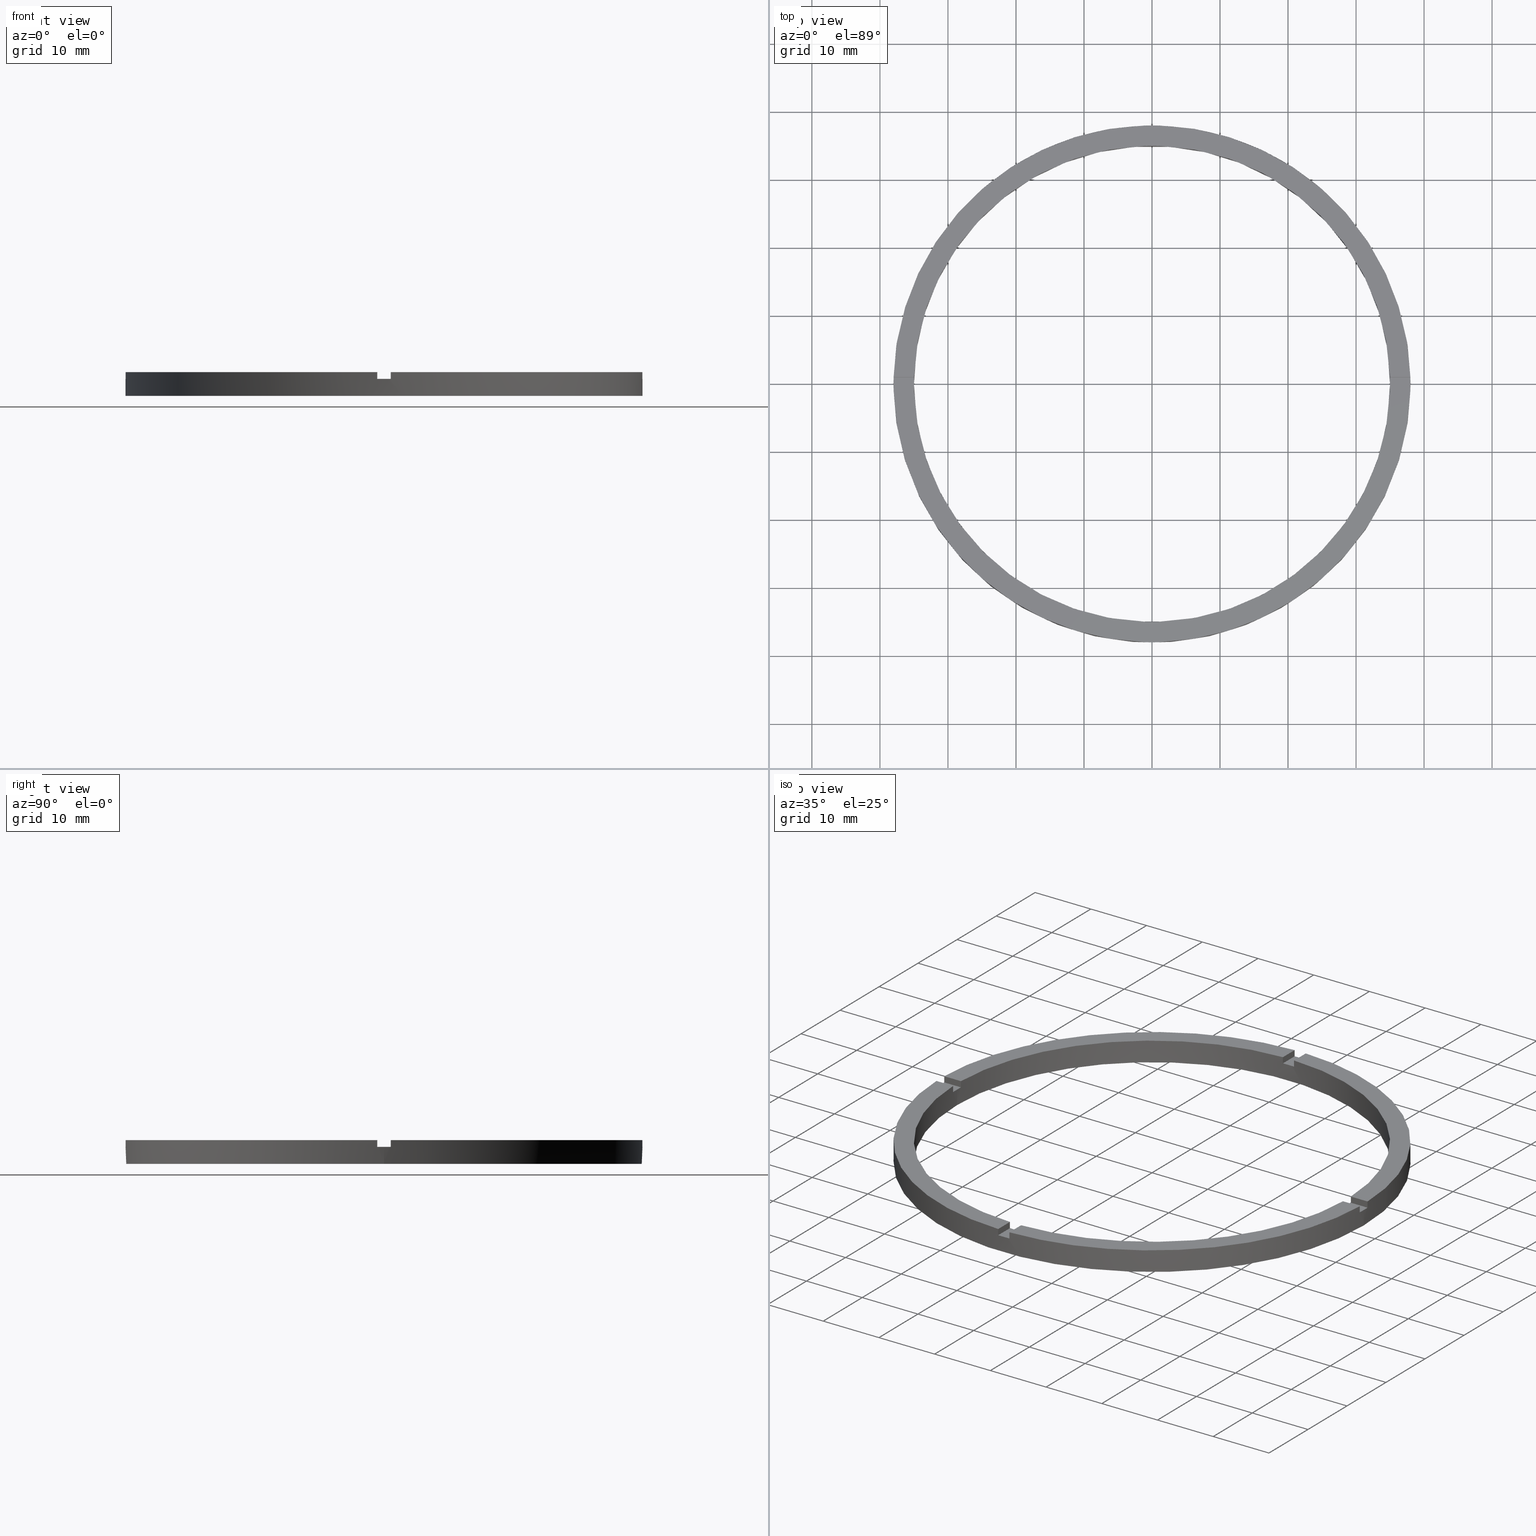
[diagram: canonical four-view strip — front | top / right | iso, engineering-drawing reading convention]
A machine part, canonical four-view strip (front | top / right | iso — engineering-drawing reading convention). The complete STEP part file that produces these views, byte-faithful:
ISO-10303-21;
HEADER;
FILE_DESCRIPTION (( 'STEP AP203' ),
    '1' );
FILE_NAME ('514157.step',
    '2024-12-26T02:43:04',
    ( 'MSI' ),
    ( '' ),
    'SwSTEP 2.0',
    'SolidWorks 2020',
    '' );
FILE_SCHEMA (( 'CONFIG_CONTROL_DESIGN' ));
ENDSEC;

DATA;
#1 = CARTESIAN_POINT ( 'NONE',  ( -28.00000000000018474, 0.9999999999999742428, 3.500000000000000000 ) ) ;
#2 = EDGE_CURVE ( 'NONE', #410, #122, #719, .T. ) ;
#3 = SECURITY_CLASSIFICATION ( '', '', #268 ) ;
#4 = CARTESIAN_POINT ( 'NONE',  ( 34.98571136907181511, 0.9999999999998423483, 3.500000000000000000 ) ) ;
#5 = ADVANCED_FACE ( 'NONE', ( #709 ), #191, .F. ) ;
#6 = CARTESIAN_POINT ( 'NONE',  ( 0.000000000000000000, 0.000000000000000000, 0.000000000000000000 ) ) ;
#7 = APPROVAL ( #439, 'δָ��' ) ;
#8 = VECTOR ( 'NONE', #677, 1000.000000000000000 ) ;
#9 = DIRECTION ( 'NONE',  ( 1.000000000000000000, 0.000000000000000000, -0.000000000000000000 ) ) ;
#10 = AXIS2_PLACEMENT_3D ( 'NONE', #432, #683, #435 ) ;
#11 = VECTOR ( 'NONE', #24, 1000.000000000000000 ) ;
#12 = DIRECTION ( 'NONE',  ( 0.000000000000000000, 0.000000000000000000, 1.000000000000000000 ) ) ;
#13 = DIRECTION ( 'NONE',  ( 0.000000000000000000, -0.000000000000000000, 1.000000000000000000 ) ) ;
#14 = LINE ( 'NONE', #445, #8 ) ;
#15 = DIRECTION ( 'NONE',  ( 1.000000000000000000, 1.951563910473907735E-16, 0.000000000000000000 ) ) ;
#16 = ADVANCED_FACE ( 'NONE', ( #180 ), #187, .T. ) ;
#17 = AXIS2_PLACEMENT_3D ( 'NONE', #563, #684, #458 ) ;
#18 = CARTESIAN_POINT ( 'NONE',  ( -34.98571136907180801, 0.9999999999999729106, 3.500000000000000000 ) ) ;
#19 = CIRCLE ( 'NONE', #434, 35.00000000000000711 ) ;
#20 = CARTESIAN_POINT ( 'NONE',  ( 34.98571136907180090, -1.000000000000157652, 2.500000000000000000 ) ) ;
#21 = EDGE_CURVE ( 'NONE', #488, #224, #195, .T. ) ;
#22 = LINE ( 'NONE', #773, #297 ) ;
#23 = LINE ( 'NONE', #243, #287 ) ;
#24 = DIRECTION ( 'NONE',  ( -0.000000000000000000, -1.000000000000000000, -0.000000000000000000 ) ) ;
#25 = DIRECTION ( 'NONE',  ( 1.000000000000000000, 0.000000000000000000, 0.000000000000000000 ) ) ;
#26 = CYLINDRICAL_SURFACE ( 'NONE', #422, 38.00000000000000000 ) ;
#27 = EDGE_CURVE ( 'NONE', #426, #626, #705, .T. ) ;
#28 = EDGE_CURVE ( 'NONE', #379, #376, #472, .T. ) ;
#29 = LINE ( 'NONE', #305, #31 ) ;
#30 = PLANE ( 'NONE',  #17 ) ;
#31 = VECTOR ( 'NONE', #265, 1000.000000000000000 ) ;
#32 = DIRECTION ( 'NONE',  ( 0.000000000000000000, 0.000000000000000000, 1.000000000000000000 ) ) ;
#33 = ADVANCED_BREP_SHAPE_REPRESENTATION ( '514157', ( #711, #570 ), #440 ) ;
#34 = LINE ( 'NONE', #375, #582 ) ;
#35 = DIRECTION ( 'NONE',  ( 1.000000000000000000, 0.000000000000000000, 0.000000000000000000 ) ) ;
#36 = DIRECTION ( 'NONE',  ( 0.000000000000000000, 0.000000000000000000, 1.000000000000000000 ) ) ;
#37 = LINE ( 'NONE', #202, #564 ) ;
#38 = CARTESIAN_POINT ( 'NONE',  ( 37.98683982644514856, -1.000000000000157430, 2.500000000000000000 ) ) ;
#39 = CARTESIAN_POINT ( 'NONE',  ( 34.98571136907180090, -1.000000000000157652, 3.500000000000000000 ) ) ;
#40 = CARTESIAN_POINT ( 'NONE',  ( 37.98683982644516277, 0.9999999999998425704, 3.500000000000000000 ) ) ;
#41 = LINE ( 'NONE', #66, #49 ) ;
#42 = CARTESIAN_POINT ( 'NONE',  ( -1.000000000000161204, -28.00000000000017764, 2.500000000000000000 ) ) ;
#43 = AXIS2_PLACEMENT_3D ( 'NONE', #532, #133, #261 ) ;
#44 = VECTOR ( 'NONE', #656, 1000.000000000000000 ) ;
#45 = DIRECTION ( 'NONE',  ( -1.000000000000000000, 0.000000000000000000, 0.000000000000000000 ) ) ;
#46 = VECTOR ( 'NONE', #186, 1000.000000000000000 ) ;
#47 = DIRECTION ( 'NONE',  ( 1.000000000000000000, 0.000000000000000000, 0.000000000000000000 ) ) ;
#48 = EDGE_CURVE ( 'NONE', #757, #649, #206, .T. ) ;
#49 = VECTOR ( 'NONE', #737, 1000.000000000000000 ) ;
#50 = ADVANCED_FACE ( 'NONE', ( #207 ), #246, .T. ) ;
#51 = DIRECTION ( 'NONE',  ( -1.000000000000000000, -1.301042606982605074E-16, 0.000000000000000000 ) ) ;
#52 = LINE ( 'NONE', #386, #333 ) ;
#53 = LINE ( 'NONE', #298, #55 ) ;
#54 = CARTESIAN_POINT ( 'NONE',  ( 38.00000000000000000, 4.653657836759941941E-15, 3.500000000000000000 ) ) ;
#55 = VECTOR ( 'NONE', #433, 1000.000000000000000 ) ;
#56 = CARTESIAN_POINT ( 'NONE',  ( 0.000000000000000000, 0.000000000000000000, 3.500000000000000000 ) ) ;
#57 = FACE_OUTER_BOUND ( 'NONE', #642, .T. ) ;
#58 = CIRCLE ( 'NONE', #267, 38.00000000000000000 ) ;
#59 = LINE ( 'NONE', #61, #598 ) ;
#60 = CC_DESIGN_PERSON_AND_ORGANIZATION_ASSIGNMENT ( #602, #259, ( #644 ) ) ;
#61 = CARTESIAN_POINT ( 'NONE',  ( 0.9999999999999746869, 27.99999999999999645, 3.500000000000000000 ) ) ;
#62 = ADVANCED_FACE ( 'NONE', ( #170 ), #533, .F. ) ;
#63 = FACE_OUTER_BOUND ( 'NONE', #428, .T. ) ;
#64 = PERSON_AND_ORGANIZATION ( #183, #77 ) ;
#65 = EDGE_CURVE ( 'NONE', #488, #376, #182, .T. ) ;
#66 = CARTESIAN_POINT ( 'NONE',  ( -38.00000000000000000, 0.000000000000000000, 3.500000000000000000 ) ) ;
#67 = CIRCLE ( 'NONE', #164, 35.00000000000000711 ) ;
#68 = EDGE_CURVE ( 'NONE', #647, #146, #703, .T. ) ;
#69 = VECTOR ( 'NONE', #544, 1000.000000000000000 ) ;
#70 = DATE_AND_TIME ( #355, #88 ) ;
#71 = PLANE ( 'NONE',  #721 ) ;
#72 = DIRECTION ( 'NONE',  ( 0.000000000000000000, 1.000000000000000000, 0.000000000000000000 ) ) ;
#73 = LINE ( 'NONE', #373, #44 ) ;
#74 = COORDINATED_UNIVERSAL_TIME_OFFSET ( 8, 0, .AHEAD. ) ;
#75 = APPROVAL_PERSON_ORGANIZATION ( #64, #519, #551 ) ;
#76 = PLANE ( 'NONE',  #484 ) ;
#77 = ORGANIZATION ( 'δָ��', 'δָ��', '' ) ;
#78 = AXIS2_PLACEMENT_3D ( 'NONE', #273, #13, #525 ) ;
#79 = VECTOR ( 'NONE', #560, 1000.000000000000000 ) ;
#80 = LOCAL_TIME ( 10, 43, 4.000000000000000000, #346 ) ;
#81 = DIRECTION ( 'NONE',  ( 0.000000000000000000, 0.000000000000000000, 1.000000000000000000 ) ) ;
#82 = APPROVAL_DATE_TIME ( #610, #519 ) ;
#83 = EDGE_CURVE ( 'NONE', #129, #465, #184, .T. ) ;
#84 = ORIENTED_EDGE ( 'NONE', *, *, #565, .F. ) ;
#85 = CARTESIAN_POINT ( 'NONE',  ( -1.000000000000161204, -28.00000000000017764, 2.500000000000000000 ) ) ;
#86 = LINE ( 'NONE', #648, #364 ) ;
#87 = ADVANCED_FACE ( 'NONE', ( #707 ), #381, .T. ) ;
#88 = LOCAL_TIME ( 10, 43, 4.000000000000000000, #606 ) ;
#89 = CARTESIAN_POINT ( 'NONE',  ( 27.99999999999998934, 0.9999999999998419042, 3.500000000000000000 ) ) ;
#90 = CYLINDRICAL_SURFACE ( 'NONE', #669, 35.00000000000000711 ) ;
#91 = PERSON_AND_ORGANIZATION ( #183, #77 ) ;
#92 = DIRECTION ( 'NONE',  ( 0.000000000000000000, 0.000000000000000000, 1.000000000000000000 ) ) ;
#93 = FACE_OUTER_BOUND ( 'NONE', #172, .T. ) ;
#94 = CALENDAR_DATE ( 2024, 26, 12 ) ;
#95 = VECTOR ( 'NONE', #289, 1000.000000000000000 ) ;
#96 = DIRECTION ( 'NONE',  ( -1.000000000000000000, -1.951563910473907735E-16, 0.000000000000000000 ) ) ;
#97 = ORIENTED_EDGE ( 'NONE', *, *, #121, .T. ) ;
#98 = VERTEX_POINT ( 'NONE', #168 ) ;
#99 = DIRECTION ( 'NONE',  ( 0.000000000000000000, 0.000000000000000000, 1.000000000000000000 ) ) ;
#100 = EDGE_LOOP ( 'NONE', ( #137, #512, #738, #228 ) ) ;
#101 = VERTEX_POINT ( 'NONE', #257 ) ;
#102 = ORIENTED_EDGE ( 'NONE', *, *, #781, .F. ) ;
#103 = CARTESIAN_POINT ( 'NONE',  ( 0.000000000000000000, 0.000000000000000000, 2.500000000000000000 ) ) ;
#104 = ORIENTED_EDGE ( 'NONE', *, *, #331, .F. ) ;
#105 = CARTESIAN_POINT ( 'NONE',  ( -28.00000000000018474, -1.000000000000025757, 2.500000000000000000 ) ) ;
#106 = AXIS2_PLACEMENT_3D ( 'NONE', #103, #204, #583 ) ;
#107 = EDGE_CURVE ( 'NONE', #379, #256, #188, .T. ) ;
#108 = LINE ( 'NONE', #700, #384 ) ;
#109 = DIRECTION ( 'NONE',  ( -1.301042606982605074E-16, 1.000000000000000000, 0.000000000000000000 ) ) ;
#110 = DESIGN_CONTEXT ( 'detailed design', #726, 'design' ) ;
#111 = ORIENTED_EDGE ( 'NONE', *, *, #413, .F. ) ;
#112 = DIRECTION ( 'NONE',  ( 1.000000000000000000, 0.000000000000000000, 0.000000000000000000 ) ) ;
#113 = DIRECTION ( 'NONE',  ( -0.000000000000000000, -0.000000000000000000, -1.000000000000000000 ) ) ;
#114 = CARTESIAN_POINT ( 'NONE',  ( 35.00000000000000711, 4.286263797015737285E-15, 2.500000000000000000 ) ) ;
#115 = CARTESIAN_POINT ( 'NONE',  ( 34.98571136907181511, 0.9999999999998423483, 2.500000000000000000 ) ) ;
#116 = EDGE_CURVE ( 'NONE', #242, #240, #210, .T. ) ;
#117 = DIRECTION ( 'NONE',  ( 1.000000000000000000, 0.000000000000000000, 0.000000000000000000 ) ) ;
#118 = AXIS2_PLACEMENT_3D ( 'NONE', #771, #32, #25 ) ;
#119 = ORIENTED_EDGE ( 'NONE', *, *, #142, .T. ) ;
#120 = APPROVAL ( #276, 'δָ��' ) ;
#121 = EDGE_CURVE ( 'NONE', #488, #460, #478, .T. ) ;
#122 = VERTEX_POINT ( 'NONE', #321 ) ;
#123 = ORIENTED_EDGE ( 'NONE', *, *, #380, .T. ) ;
#124 = AXIS2_PLACEMENT_3D ( 'NONE', #621, #12, #270 ) ;
#125 = DIRECTION ( 'NONE',  ( 0.000000000000000000, 0.000000000000000000, 1.000000000000000000 ) ) ;
#126 = ORIENTED_EDGE ( 'NONE', *, *, #269, .F. ) ;
#127 = CARTESIAN_POINT ( 'NONE',  ( -1.000000000000025313, 37.98683982644515567, 3.500000000000000000 ) ) ;
#128 = CARTESIAN_POINT ( 'NONE',  ( 0.000000000000000000, 0.000000000000000000, 3.500000000000000000 ) ) ;
#129 = VERTEX_POINT ( 'NONE', #144 ) ;
#130 = ORIENTED_EDGE ( 'NONE', *, *, #405, .T. ) ;
#131 = CARTESIAN_POINT ( 'NONE',  ( 0.000000000000000000, 0.000000000000000000, 2.500000000000000000 ) ) ;
#132 = VERTEX_POINT ( 'NONE', #296 ) ;
#133 = DIRECTION ( 'NONE',  ( 0.000000000000000000, 0.000000000000000000, 1.000000000000000000 ) ) ;
#134 = ORIENTED_EDGE ( 'NONE', *, *, #65, .T. ) ;
#135 = EDGE_CURVE ( 'NONE', #701, #410, #734, .T. ) ;
#136 = ORIENTED_EDGE ( 'NONE', *, *, #68, .F. ) ;
#137 = ORIENTED_EDGE ( 'NONE', *, *, #603, .T. ) ;
#138 = ORIENTED_EDGE ( 'NONE', *, *, #603, .F. ) ;
#139 = DIRECTION ( 'NONE',  ( 1.000000000000000000, 0.000000000000000000, 0.000000000000000000 ) ) ;
#140 = CARTESIAN_POINT ( 'NONE',  ( 0.000000000000000000, 0.000000000000000000, 3.500000000000000000 ) ) ;
#141 = ORIENTED_EDGE ( 'NONE', *, *, #641, .F. ) ;
#142 = EDGE_CURVE ( 'NONE', #427, #770, #475, .T. ) ;
#143 = APPROVAL_ROLE ( '' ) ;
#144 = CARTESIAN_POINT ( 'NONE',  ( -34.98571136907180801, -1.000000000000027089, 3.500000000000000000 ) ) ;
#145 = ORIENTED_EDGE ( 'NONE', *, *, #310, .T. ) ;
#146 = VERTEX_POINT ( 'NONE', #114 ) ;
#147 = CARTESIAN_POINT ( 'NONE',  ( 0.9999999999999746869, 37.98683982644515567, 2.500000000000000000 ) ) ;
#148 = VERTEX_POINT ( 'NONE', #418 ) ;
#149 = DIRECTION ( 'NONE',  ( 1.000000000000000000, 0.000000000000000000, 0.000000000000000000 ) ) ;
#150 = ORIENTED_EDGE ( 'NONE', *, *, #575, .F. ) ;
#151 = ORIENTED_EDGE ( 'NONE', *, *, #227, .T. ) ;
#152 = DIRECTION ( 'NONE',  ( 1.000000000000000000, 0.000000000000000000, 0.000000000000000000 ) ) ;
#153 = ORIENTED_EDGE ( 'NONE', *, *, #704, .F. ) ;
#154 = CARTESIAN_POINT ( 'NONE',  ( 0.000000000000000000, 0.000000000000000000, 3.500000000000000000 ) ) ;
#155 = AXIS2_PLACEMENT_3D ( 'NONE', #779, #113, #586 ) ;
#156 = CARTESIAN_POINT ( 'NONE',  ( -28.00000000000018474, 0.9999999999999742428, 2.500000000000000000 ) ) ;
#157 = CARTESIAN_POINT ( 'NONE',  ( 0.9999999999998389066, -28.00000000000017764, 2.500000000000000000 ) ) ;
#158 = CARTESIAN_POINT ( 'NONE',  ( 0.9999999999999746869, 37.98683982644515567, 3.500000000000000000 ) ) ;
#159 = AXIS2_PLACEMENT_3D ( 'NONE', #128, #605, #307 ) ;
#160 = DIRECTION ( 'NONE',  ( 1.000000000000000000, 0.000000000000000000, 0.000000000000000000 ) ) ;
#161 = CARTESIAN_POINT ( 'NONE',  ( 0.9999999999998402389, -37.98683982644516277, 2.500000000000000000 ) ) ;
#162 = CARTESIAN_POINT ( 'NONE',  ( -37.98683982644515567, -1.000000000000027756, 3.500000000000000000 ) ) ;
#163 = DIRECTION ( 'NONE',  ( 1.000000000000000000, 1.951563910473907735E-16, -0.000000000000000000 ) ) ;
#164 = AXIS2_PLACEMENT_3D ( 'NONE', #493, #429, #538 ) ;
#165 = CARTESIAN_POINT ( 'NONE',  ( -34.98571136907180801, -1.000000000000027089, 3.500000000000000000 ) ) ;
#166 = EDGE_CURVE ( 'NONE', #129, #661, #728, .T. ) ;
#167 = DIRECTION ( 'NONE',  ( 0.000000000000000000, 0.000000000000000000, 1.000000000000000000 ) ) ;
#168 = CARTESIAN_POINT ( 'NONE',  ( -1.000000000000025313, 34.98571136907180801, 3.500000000000000000 ) ) ;
#169 = DIRECTION ( 'NONE',  ( -0.000000000000000000, -0.000000000000000000, -1.000000000000000000 ) ) ;
#170 = FACE_OUTER_BOUND ( 'NONE', #197, .T. ) ;
#171 = LOCAL_TIME ( 10, 43, 4.000000000000000000, #691 ) ;
#172 = EDGE_LOOP ( 'NONE', ( #130, #609, #430, #402 ) ) ;
#173 = EDGE_CURVE ( 'NONE', #626, #101, #213, .T. ) ;
#174 = ORIENTED_EDGE ( 'NONE', *, *, #405, .F. ) ;
#175 = CC_DESIGN_PERSON_AND_ORGANIZATION_ASSIGNMENT ( #363, #676, ( #680 ) ) ;
#176 = EDGE_CURVE ( 'NONE', #460, #767, #481, .T. ) ;
#177 = ORIENTED_EDGE ( 'NONE', *, *, #675, .F. ) ;
#178 = APPROVAL_PERSON_ORGANIZATION ( #340, #120, #319 ) ;
#179 = DIRECTION ( 'NONE',  ( 0.000000000000000000, 0.000000000000000000, 1.000000000000000000 ) ) ;
#180 = FACE_OUTER_BOUND ( 'NONE', #663, .T. ) ;
#181 = DIRECTION ( 'NONE',  ( -0.000000000000000000, -0.000000000000000000, -1.000000000000000000 ) ) ;
#182 = CIRCLE ( 'NONE', #443, 38.00000000000000000 ) ;
#183 = PERSON ( 'δָ��', 'δָ��', 'δָ��', ('δָ��'), ('δָ��'), ('δָ��') ) ;
#184 = CIRCLE ( 'NONE', #118, 35.00000000000000711 ) ;
#185 = PRODUCT_DEFINITION ( 'δ֪', '', #680, #110 ) ;
#186 = DIRECTION ( 'NONE',  ( 0.000000000000000000, 0.000000000000000000, 1.000000000000000000 ) ) ;
#187 = CYLINDRICAL_SURFACE ( 'NONE', #155, 38.00000000000000000 ) ;
#188 = CIRCLE ( 'NONE', #713, 38.00000000000000000 ) ;
#189 = CARTESIAN_POINT ( 'NONE',  ( 27.99999999999998934, -1.000000000000158096, 3.500000000000000000 ) ) ;
#190 = ORIENTED_EDGE ( 'NONE', *, *, #68, .T. ) ;
#191 = CYLINDRICAL_SURFACE ( 'NONE', #332, 35.00000000000000711 ) ;
#192 = DATE_TIME_ROLE ( 'creation_date' ) ;
#193 = ORIENTED_EDGE ( 'NONE', *, *, #641, .T. ) ;
#194 = CARTESIAN_POINT ( 'NONE',  ( -37.98683982644515567, 0.9999999999999722444, 3.500000000000000000 ) ) ;
#195 = LINE ( 'NONE', #477, #699 ) ;
#196 = DIRECTION ( 'NONE',  ( -0.000000000000000000, -0.000000000000000000, -1.000000000000000000 ) ) ;
#197 = EDGE_LOOP ( 'NONE', ( #491, #394, #506, #141 ) ) ;
#198 = AXIS2_PLACEMENT_3D ( 'NONE', #568, #81, #278 ) ;
#199 = ORIENTED_EDGE ( 'NONE', *, *, #83, .T. ) ;
#200 = PERSON_AND_ORGANIZATION_ROLE ( 'design_supplier' ) ;
#201 = EDGE_LOOP ( 'NONE', ( #249, #763, #412, #665 ) ) ;
#202 = CARTESIAN_POINT ( 'NONE',  ( 0.9999999999998397948, -34.98571136907181511, 3.500000000000000000 ) ) ;
#203 = CARTESIAN_POINT ( 'NONE',  ( -38.00000000000000000, 0.000000000000000000, 0.000000000000000000 ) ) ;
#204 = DIRECTION ( 'NONE',  ( 0.000000000000000000, 0.000000000000000000, 1.000000000000000000 ) ) ;
#205 = APPLICATION_PROTOCOL_DEFINITION ( 'international standard', 'config_control_design', 1994, #726 ) ;
#206 = LINE ( 'NONE', #85, #723 ) ;
#207 = FACE_OUTER_BOUND ( 'NONE', #382, .T. ) ;
#208 = ORIENTED_EDGE ( 'NONE', *, *, #781, .T. ) ;
#209 = AXIS2_PLACEMENT_3D ( 'NONE', #416, #404, #569 ) ;
#210 = CIRCLE ( 'NONE', #662, 35.00000000000000711 ) ;
#211 = DIRECTION ( 'NONE',  ( 1.000000000000000000, 1.951563910473907735E-16, -0.000000000000000000 ) ) ;
#212 = ORIENTED_EDGE ( 'NONE', *, *, #540, .T. ) ;
#213 = CIRCLE ( 'NONE', #776, 38.00000000000000000 ) ;
#214 = ADVANCED_FACE ( 'NONE', ( #736 ), #71, .F. ) ;
#215 = ORIENTED_EDGE ( 'NONE', *, *, #116, .F. ) ;
#216 = VECTOR ( 'NONE', #471, 1000.000000000000000 ) ;
#217 = ORIENTED_EDGE ( 'NONE', *, *, #367, .T. ) ;
#218 = EDGE_CURVE ( 'NONE', #638, #661, #730, .T. ) ;
#219 = VECTOR ( 'NONE', #349, 1000.000000000000000 ) ;
#220 = VERTEX_POINT ( 'NONE', #479 ) ;
#221 = DIRECTION ( 'NONE',  ( -0.000000000000000000, -0.000000000000000000, -1.000000000000000000 ) ) ;
#222 = ORIENTED_EDGE ( 'NONE', *, *, #300, .F. ) ;
#223 = EDGE_LOOP ( 'NONE', ( #756, #476, #729, #431 ) ) ;
#224 = VERTEX_POINT ( 'NONE', #782 ) ;
#225 = VERTEX_POINT ( 'NONE', #534 ) ;
#226 = DIRECTION ( 'NONE',  ( -1.000000000000000000, -1.951563910473907735E-16, 0.000000000000000000 ) ) ;
#227 = EDGE_CURVE ( 'NONE', #224, #767, #37, .T. ) ;
#228 = ORIENTED_EDGE ( 'NONE', *, *, #679, .F. ) ;
#229 = ORIENTED_EDGE ( 'NONE', *, *, #367, .F. ) ;
#230 = CC_DESIGN_DATE_AND_TIME_ASSIGNMENT ( #359, #192, ( #185 ) ) ;
#231 = EDGE_CURVE ( 'NONE', #146, #696, #316, .T. ) ;
#232 = CARTESIAN_POINT ( 'NONE',  ( 37.98683982644514856, -1.000000000000157430, 3.500000000000000000 ) ) ;
#233 = ORIENTED_EDGE ( 'NONE', *, *, #413, .T. ) ;
#234 = CARTESIAN_POINT ( 'NONE',  ( 35.00000000000000711, 4.286263797015737285E-15, 3.500000000000000000 ) ) ;
#235 = ORIENTED_EDGE ( 'NONE', *, *, #540, .F. ) ;
#236 = ORIENTED_EDGE ( 'NONE', *, *, #285, .F. ) ;
#237 = DIRECTION ( 'NONE',  ( -0.000000000000000000, -0.000000000000000000, -1.000000000000000000 ) ) ;
#238 = ORIENTED_EDGE ( 'NONE', *, *, #83, .F. ) ;
#239 = CARTESIAN_POINT ( 'NONE',  ( 0.000000000000000000, 0.000000000000000000, 0.000000000000000000 ) ) ;
#240 = VERTEX_POINT ( 'NONE', #581 ) ;
#241 = AXIS2_PLACEMENT_3D ( 'NONE', #640, #489, #578 ) ;
#242 = VERTEX_POINT ( 'NONE', #588 ) ;
#243 = CARTESIAN_POINT ( 'NONE',  ( 27.99999999999998934, 0.9999999999998419042, 2.500000000000000000 ) ) ;
#244 = CC_DESIGN_PERSON_AND_ORGANIZATION_ASSIGNMENT ( #91, #272, ( #3 ) ) ;
#245 = VERTEX_POINT ( 'NONE', #18 ) ;
#246 = PLANE ( 'NONE',  #241 ) ;
#247 = ORIENTED_EDGE ( 'NONE', *, *, #716, .T. ) ;
#248 = DIRECTION ( 'NONE',  ( -6.505213034913025371E-17, 1.000000000000000000, 0.000000000000000000 ) ) ;
#249 = ORIENTED_EDGE ( 'NONE', *, *, #48, .F. ) ;
#250 = UNCERTAINTY_MEASURE_WITH_UNIT (LENGTH_MEASURE( 1.000000000000000082E-05 ), #396, 'distance_accuracy_value', 'NONE');
#251 = CARTESIAN_POINT ( 'NONE',  ( -34.98571136907180801, 0.9999999999999729106, 3.500000000000000000 ) ) ;
#252 = ORIENTED_EDGE ( 'NONE', *, *, #2, .T. ) ;
#253 = ORIENTED_EDGE ( 'NONE', *, *, #622, .F. ) ;
#254 = ORIENTED_EDGE ( 'NONE', *, *, #107, .F. ) ;
#255 = ORIENTED_EDGE ( 'NONE', *, *, #442, .F. ) ;
#256 = VERTEX_POINT ( 'NONE', #530 ) ;
#257 = CARTESIAN_POINT ( 'NONE',  ( -37.98683982644515567, -1.000000000000027756, 2.500000000000000000 ) ) ;
#258 = PRODUCT_DEFINITION_SHAPE ( 'NONE', 'NONE',  #185 ) ;
#259 = PERSON_AND_ORGANIZATION_ROLE ( 'design_owner' ) ;
#260 = AXIS2_PLACEMENT_3D ( 'NONE', #589, #780, #35 ) ;
#261 = DIRECTION ( 'NONE',  ( 1.000000000000000000, 0.000000000000000000, -0.000000000000000000 ) ) ;
#262 = DIRECTION ( 'NONE',  ( 1.301042606982605074E-16, -1.000000000000000000, 0.000000000000000000 ) ) ;
#263 = CARTESIAN_POINT ( 'NONE',  ( 0.9999999999998397948, -34.98571136907181511, 2.500000000000000000 ) ) ;
#264 = CARTESIAN_POINT ( 'NONE',  ( 0.9999999999999746869, 34.98571136907180801, 3.500000000000000000 ) ) ;
#265 = DIRECTION ( 'NONE',  ( -0.000000000000000000, -0.000000000000000000, -1.000000000000000000 ) ) ;
#266 = ADVANCED_FACE ( 'NONE', ( #320 ), #777, .T. ) ;
#267 = AXIS2_PLACEMENT_3D ( 'NONE', #566, #743, #393 ) ;
#268 = SECURITY_CLASSIFICATION_LEVEL ( 'unclassified' ) ;
#269 = EDGE_CURVE ( 'NONE', #98, #672, #34, .T. ) ;
#270 = DIRECTION ( 'NONE',  ( 1.000000000000000000, 0.000000000000000000, 0.000000000000000000 ) ) ;
#271 = EDGE_CURVE ( 'NONE', #245, #454, #323, .T. ) ;
#272 = PERSON_AND_ORGANIZATION_ROLE ( 'classification_officer' ) ;
#273 = CARTESIAN_POINT ( 'NONE',  ( 0.000000000000000000, 0.000000000000000000, 2.500000000000000000 ) ) ;
#274 = DIRECTION ( 'NONE',  ( -0.000000000000000000, -0.000000000000000000, -1.000000000000000000 ) ) ;
#275 = AXIS2_PLACEMENT_3D ( 'NONE', #562, #740, #390 ) ;
#276 = APPROVAL_STATUS ( 'not_yet_approved' ) ;
#277 = CARTESIAN_POINT ( 'NONE',  ( 0.000000000000000000, 0.000000000000000000, 2.500000000000000000 ) ) ;
#278 = DIRECTION ( 'NONE',  ( 1.000000000000000000, 0.000000000000000000, 0.000000000000000000 ) ) ;
#279 = PLANE ( 'NONE',  #507 ) ;
#280 = CARTESIAN_POINT ( 'NONE',  ( 0.000000000000000000, 0.000000000000000000, 3.500000000000000000 ) ) ;
#281 = DIRECTION ( 'NONE',  ( 0.000000000000000000, 0.000000000000000000, 1.000000000000000000 ) ) ;
#282 = CARTESIAN_POINT ( 'NONE',  ( 0.000000000000000000, 0.000000000000000000, 0.000000000000000000 ) ) ;
#283 = VECTOR ( 'NONE', #181, 1000.000000000000000 ) ;
#284 = DIRECTION ( 'NONE',  ( 1.000000000000000000, 0.000000000000000000, 0.000000000000000000 ) ) ;
#285 = EDGE_CURVE ( 'NONE', #638, #242, #29, .T. ) ;
#286 = LINE ( 'NONE', #127, #283 ) ;
#287 = VECTOR ( 'NONE', #584, 1000.000000000000000 ) ;
#288 = FACE_OUTER_BOUND ( 'NONE', #425, .T. ) ;
#289 = DIRECTION ( 'NONE',  ( -0.000000000000000000, -0.000000000000000000, -1.000000000000000000 ) ) ;
#290 = VECTOR ( 'NONE', #163, 1000.000000000000000 ) ;
#291 = DIRECTION ( 'NONE',  ( 1.000000000000000000, 0.000000000000000000, 0.000000000000000000 ) ) ;
#292 = CARTESIAN_POINT ( 'NONE',  ( 0.9999999999999746869, 34.98571136907180801, 2.500000000000000000 ) ) ;
#293 = CIRCLE ( 'NONE', #399, 35.00000000000000711 ) ;
#294 = VECTOR ( 'NONE', #226, 1000.000000000000000 ) ;
#295 = AXIS2_PLACEMENT_3D ( 'NONE', #313, #615, #555 ) ;
#296 = CARTESIAN_POINT ( 'NONE',  ( -1.000000000000159872, -37.98683982644514856, 3.500000000000000000 ) ) ;
#297 = VECTOR ( 'NONE', #274, 1000.000000000000000 ) ;
#298 = CARTESIAN_POINT ( 'NONE',  ( -1.000000000000160316, -34.98571136907180090, 3.500000000000000000 ) ) ;
#299 = CC_DESIGN_PERSON_AND_ORGANIZATION_ASSIGNMENT ( #600, #510, ( #185 ) ) ;
#300 = EDGE_CURVE ( 'NONE', #770, #462, #306, .T. ) ;
#301 = CIRCLE ( 'NONE', #635, 38.00000000000000000 ) ;
#302 = CIRCLE ( 'NONE', #78, 38.00000000000000000 ) ;
#303 = CARTESIAN_POINT ( 'NONE',  ( 0.000000000000000000, 0.000000000000000000, 2.500000000000000000 ) ) ;
#304 = AXIS2_PLACEMENT_3D ( 'NONE', #42, #51, #262 ) ;
#305 = CARTESIAN_POINT ( 'NONE',  ( -35.00000000000000711, 0.000000000000000000, 3.500000000000000000 ) ) ;
#306 = CIRCLE ( 'NONE', #275, 35.00000000000000711 ) ;
#307 = DIRECTION ( 'NONE',  ( 1.000000000000000000, 0.000000000000000000, 0.000000000000000000 ) ) ;
#308 = APPLICATION_CONTEXT ( 'configuration controlled 3d designs of mechanical parts and assemblies' ) ;
#309 = AXIS2_PLACEMENT_3D ( 'NONE', #636, #576, #149 ) ;
#310 = EDGE_CURVE ( 'NONE', #770, #696, #341, .T. ) ;
#311 = CARTESIAN_POINT ( 'NONE',  ( 34.98571136907181511, 0.9999999999998423483, 3.500000000000000000 ) ) ;
#312 = DIRECTION ( 'NONE',  ( -1.000000000000000000, 0.000000000000000000, 0.000000000000000000 ) ) ;
#313 = CARTESIAN_POINT ( 'NONE',  ( 0.000000000000000000, 0.000000000000000000, 3.500000000000000000 ) ) ;
#314 = CARTESIAN_POINT ( 'NONE',  ( 0.9999999999998389066, -28.00000000000017764, 2.500000000000000000 ) ) ;
#315 = EDGE_CURVE ( 'NONE', #98, #245, #329, .T. ) ;
#316 = CIRCLE ( 'NONE', #344, 35.00000000000000711 ) ;
#317 = DIRECTION ( 'NONE',  ( 1.000000000000000000, 0.000000000000000000, -0.000000000000000000 ) ) ;
#318 = FACE_OUTER_BOUND ( 'NONE', #223, .T. ) ;
#319 = APPROVAL_ROLE ( '' ) ;
#320 = FACE_OUTER_BOUND ( 'NONE', #671, .T. ) ;
#321 = CARTESIAN_POINT ( 'NONE',  ( 0.9999999999999746869, 37.98683982644515567, 3.500000000000000000 ) ) ;
#322 = VECTOR ( 'NONE', #167, 1000.000000000000000 ) ;
#323 = LINE ( 'NONE', #1, #585 ) ;
#324 = CARTESIAN_POINT ( 'NONE',  ( 0.000000000000000000, 0.000000000000000000, 2.500000000000000000 ) ) ;
#325 = CARTESIAN_POINT ( 'NONE',  ( -28.00000000000018474, 0.9999999999999742428, 2.500000000000000000 ) ) ;
#326 = ADVANCED_FACE ( 'NONE', ( #590 ), #522, .F. ) ;
#327 = FACE_BOUND ( 'NONE', #509, .T. ) ;
#328 = CC_DESIGN_APPROVAL ( #7, ( #185 ) ) ;
#329 = CIRCLE ( 'NONE', #159, 35.00000000000000711 ) ;
#330 = DIRECTION ( 'NONE',  ( -1.000000000000000000, 0.000000000000000000, 0.000000000000000000 ) ) ;
#331 = EDGE_CURVE ( 'NONE', #465, #132, #52, .T. ) ;
#332 = AXIS2_PLACEMENT_3D ( 'NONE', #280, #237, #330 ) ;
#333 = VECTOR ( 'NONE', #666, 1000.000000000000000 ) ;
#334 = CC_DESIGN_APPROVAL ( #519, ( #680 ) ) ;
#335 = CARTESIAN_POINT ( 'NONE',  ( -1.000000000000159872, -37.98683982644514856, 2.500000000000000000 ) ) ;
#336 = LINE ( 'NONE', #189, #595 ) ;
#337 = ADVANCED_FACE ( 'NONE', ( #57 ), #746, .T. ) ;
#338 = FACE_OUTER_BOUND ( 'NONE', #389, .T. ) ;
#339 = CARTESIAN_POINT ( 'NONE',  ( 0.000000000000000000, 0.000000000000000000, 3.500000000000000000 ) ) ;
#340 = PERSON_AND_ORGANIZATION ( #183, #77 ) ;
#341 = LINE ( 'NONE', #4, #69 ) ;
#342 = APPROVAL_PERSON_ORGANIZATION ( #356, #7, #143 ) ;
#343 = PLANE ( 'NONE',  #749 ) ;
#344 = AXIS2_PLACEMENT_3D ( 'NONE', #561, #629, #152 ) ;
#345 = VECTOR ( 'NONE', #361, 1000.000000000000000 ) ;
#346 = COORDINATED_UNIVERSAL_TIME_OFFSET ( 8, 0, .AHEAD. ) ;
#347 = FACE_OUTER_BOUND ( 'NONE', #650, .T. ) ;
#348 = DIRECTION ( 'NONE',  ( 0.000000000000000000, 0.000000000000000000, 1.000000000000000000 ) ) ;
#349 = DIRECTION ( 'NONE',  ( -1.000000000000000000, -6.505213034913025371E-17, -0.000000000000000000 ) ) ;
#350 = CALENDAR_DATE ( 2024, 26, 12 ) ;
#351 = FACE_OUTER_BOUND ( 'NONE', #468, .T. ) ;
#352 = CARTESIAN_POINT ( 'NONE',  ( -38.00000000000000000, 0.000000000000000000, 2.500000000000000000 ) ) ;
#353 = CIRCLE ( 'NONE', #655, 38.00000000000000000 ) ;
#354 = EDGE_LOOP ( 'NONE', ( #513, #660, #217, #480 ) ) ;
#355 = CALENDAR_DATE ( 2024, 26, 12 ) ;
#356 = PERSON_AND_ORGANIZATION ( #183, #77 ) ;
#357 = DIRECTION ( 'NONE',  ( 0.000000000000000000, 0.000000000000000000, 1.000000000000000000 ) ) ;
#358 = AXIS2_PLACEMENT_3D ( 'NONE', #157, #466, #109 ) ;
#359 = DATE_AND_TIME ( #350, #360 ) ;
#360 = LOCAL_TIME ( 10, 43, 4.000000000000000000, #74 ) ;
#361 = DIRECTION ( 'NONE',  ( -0.000000000000000000, -0.000000000000000000, -1.000000000000000000 ) ) ;
#362 = FACE_OUTER_BOUND ( 'NONE', #517, .T. ) ;
#363 = PERSON_AND_ORGANIZATION ( #183, #77 ) ;
#364 = VECTOR ( 'NONE', #531, 1000.000000000000000 ) ;
#365 = DIRECTION ( 'NONE',  ( 1.000000000000000000, 0.000000000000000000, 0.000000000000000000 ) ) ;
#366 = COORDINATED_UNIVERSAL_TIME_OFFSET ( 8, 0, .AHEAD. ) ;
#367 = EDGE_CURVE ( 'NONE', #378, #376, #336, .T. ) ;
#368 = LINE ( 'NONE', #234, #95 ) ;
#369 = DIRECTION ( 'NONE',  ( -1.000000000000000000, -6.505213034913025371E-17, 0.000000000000000000 ) ) ;
#370 = ORIENTED_EDGE ( 'NONE', *, *, #2, .F. ) ;
#371 = CIRCLE ( 'NONE', #106, 35.00000000000000711 ) ;
#372 = ORIENTED_EDGE ( 'NONE', *, *, #28, .T. ) ;
#373 = CARTESIAN_POINT ( 'NONE',  ( -1.000000000000025313, 27.99999999999999645, 2.500000000000000000 ) ) ;
#374 = DIRECTION ( 'NONE',  ( 1.000000000000000000, 0.000000000000000000, -0.000000000000000000 ) ) ;
#375 = CARTESIAN_POINT ( 'NONE',  ( -1.000000000000025313, 34.98571136907180801, 3.500000000000000000 ) ) ;
#376 = VERTEX_POINT ( 'NONE', #553 ) ;
#377 = EDGE_CURVE ( 'NONE', #417, #454, #592, .T. ) ;
#378 = VERTEX_POINT ( 'NONE', #631 ) ;
#379 = VERTEX_POINT ( 'NONE', #38 ) ;
#380 = EDGE_CURVE ( 'NONE', #462, #122, #59, .T. ) ;
#381 = PLANE ( 'NONE',  #573 ) ;
#382 = EDGE_LOOP ( 'NONE', ( #411, #664, #395, #639, #744, #421 ) ) ;
#383 = DIRECTION ( 'NONE',  ( 1.000000000000000000, 0.000000000000000000, 0.000000000000000000 ) ) ;
#384 = VECTOR ( 'NONE', #92, 1000.000000000000000 ) ;
#385 = DIRECTION ( 'NONE',  ( 1.000000000000000000, 0.000000000000000000, 0.000000000000000000 ) ) ;
#386 = CARTESIAN_POINT ( 'NONE',  ( -1.000000000000161204, -28.00000000000017764, 3.500000000000000000 ) ) ;
#387 = APPLICATION_PROTOCOL_DEFINITION ( 'international standard', 'config_control_design', 1994, #308 ) ;
#388 = ADVANCED_FACE ( 'NONE', ( #63 ), #26, .T. ) ;
#389 = EDGE_LOOP ( 'NONE', ( #212, #633, #153, #494 ) ) ;
#390 = DIRECTION ( 'NONE',  ( 1.000000000000000000, 0.000000000000000000, 0.000000000000000000 ) ) ;
#391 = ORIENTED_EDGE ( 'NONE', *, *, #716, .F. ) ;
#392 = ORIENTED_EDGE ( 'NONE', *, *, #227, .F. ) ;
#393 = DIRECTION ( 'NONE',  ( 1.000000000000000000, 0.000000000000000000, 0.000000000000000000 ) ) ;
#394 = ORIENTED_EDGE ( 'NONE', *, *, #712, .T. ) ;
#395 = ORIENTED_EDGE ( 'NONE', *, *, #436, .T. ) ;
#396 =( LENGTH_UNIT ( ) NAMED_UNIT ( * ) SI_UNIT ( .MILLI., .METRE. ) );
#397 = ORIENTED_EDGE ( 'NONE', *, *, #575, .T. ) ;
#398 = VERTEX_POINT ( 'NONE', #203 ) ;
#399 = AXIS2_PLACEMENT_3D ( 'NONE', #546, #611, #47 ) ;
#400 = CARTESIAN_POINT ( 'NONE',  ( -37.98683982644515567, -1.000000000000027756, 3.500000000000000000 ) ) ;
#401 = DIRECTION ( 'NONE',  ( -0.000000000000000000, -0.000000000000000000, -1.000000000000000000 ) ) ;
#402 = ORIENTED_EDGE ( 'NONE', *, *, #135, .T. ) ;
#403 = DIRECTION ( 'NONE',  ( 0.000000000000000000, -0.000000000000000000, 1.000000000000000000 ) ) ;
#404 = DIRECTION ( 'NONE',  ( 1.000000000000000000, -0.000000000000000000, 0.000000000000000000 ) ) ;
#405 = EDGE_CURVE ( 'NONE', #410, #486, #302, .T. ) ;
#406 = DIRECTION ( 'NONE',  ( 0.000000000000000000, 0.000000000000000000, 1.000000000000000000 ) ) ;
#407 = ORIENTED_EDGE ( 'NONE', *, *, #535, .T. ) ;
#408 = EDGE_LOOP ( 'NONE', ( #674, #646, #651, #492, #136, #612 ) ) ;
#409 = DIRECTION ( 'NONE',  ( 1.000000000000000000, 0.000000000000000000, 0.000000000000000000 ) ) ;
#410 = VERTEX_POINT ( 'NONE', #147 ) ;
#411 = ORIENTED_EDGE ( 'NONE', *, *, #27, .T. ) ;
#412 = ORIENTED_EDGE ( 'NONE', *, *, #331, .T. ) ;
#413 = EDGE_CURVE ( 'NONE', #398, #148, #558, .T. ) ;
#414 = ORIENTED_EDGE ( 'NONE', *, *, #271, .F. ) ;
#415 = EDGE_CURVE ( 'NONE', #701, #672, #550, .T. ) ;
#416 = CARTESIAN_POINT ( 'NONE',  ( 0.9999999999999746869, 27.99999999999999645, 2.500000000000000000 ) ) ;
#417 = VERTEX_POINT ( 'NONE', #775 ) ;
#418 = CARTESIAN_POINT ( 'NONE',  ( 38.00000000000000000, 4.653657836759941941E-15, 0.000000000000000000 ) ) ;
#419 = ORIENTED_EDGE ( 'NONE', *, *, #176, .F. ) ;
#420 = DIRECTION ( 'NONE',  ( 0.000000000000000000, 0.000000000000000000, 1.000000000000000000 ) ) ;
#421 = ORIENTED_EDGE ( 'NONE', *, *, #520, .T. ) ;
#422 = AXIS2_PLACEMENT_3D ( 'NONE', #140, #196, #312 ) ;
#423 = CARTESIAN_POINT ( 'NONE',  ( -37.98683982644515567, 0.9999999999999722444, 2.500000000000000000 ) ) ;
#424 = ORIENTED_EDGE ( 'NONE', *, *, #593, .T. ) ;
#425 = EDGE_LOOP ( 'NONE', ( #765, #397, #123, #370 ) ) ;
#426 = VERTEX_POINT ( 'NONE', #423 ) ;
#427 = VERTEX_POINT ( 'NONE', #40 ) ;
#428 = EDGE_LOOP ( 'NONE', ( #759, #208, #457, #630, #732, #193, #741, #459, #174, #252, #391, #499 ) ) ;
#429 = DIRECTION ( 'NONE',  ( 0.000000000000000000, 0.000000000000000000, 1.000000000000000000 ) ) ;
#430 = ORIENTED_EDGE ( 'NONE', *, *, #415, .F. ) ;
#431 = ORIENTED_EDGE ( 'NONE', *, *, #48, .T. ) ;
#432 = CARTESIAN_POINT ( 'NONE',  ( 0.000000000000000000, 0.000000000000000000, 3.500000000000000000 ) ) ;
#433 = DIRECTION ( 'NONE',  ( 0.000000000000000000, 0.000000000000000000, 1.000000000000000000 ) ) ;
#434 = AXIS2_PLACEMENT_3D ( 'NONE', #154, #420, #160 ) ;
#435 = DIRECTION ( 'NONE',  ( 1.000000000000000000, 0.000000000000000000, -0.000000000000000000 ) ) ;
#436 = EDGE_CURVE ( 'NONE', #101, #661, #539, .T. ) ;
#437 =( NAMED_UNIT ( * ) PLANE_ANGLE_UNIT ( ) SI_UNIT ( $, .RADIAN. ) );
#438 = CARTESIAN_POINT ( 'NONE',  ( -1.000000000000025313, 37.98683982644515567, 2.500000000000000000 ) ) ;
#439 = APPROVAL_STATUS ( 'not_yet_approved' ) ;
#440 =( GEOMETRIC_REPRESENTATION_CONTEXT ( 3 ) GLOBAL_UNCERTAINTY_ASSIGNED_CONTEXT ( ( #250 ) ) GLOBAL_UNIT_ASSIGNED_CONTEXT ( ( #396, #437, #628 ) ) REPRESENTATION_CONTEXT ( 'NONE', 'WORKASPACE' ) );
#441 = DIRECTION ( 'NONE',  ( 1.000000000000000000, 6.505213034913025371E-17, 0.000000000000000000 ) ) ;
#442 = EDGE_CURVE ( 'NONE', #718, #132, #554, .T. ) ;
#443 = AXIS2_PLACEMENT_3D ( 'NONE', #339, #406, #284 ) ;
#444 = PLANE ( 'NONE',  #764 ) ;
#445 = CARTESIAN_POINT ( 'NONE',  ( 27.99999999999998934, -1.000000000000158096, 2.500000000000000000 ) ) ;
#446 = EDGE_CURVE ( 'NONE', #647, #379, #14, .T. ) ;
#447 = DATE_AND_TIME ( #693, #171 ) ;
#448 = APPROVAL_DATE_TIME ( #447, #120 ) ;
#449 = ADVANCED_FACE ( 'NONE', ( #547 ), #601, .T. ) ;
#450 = CARTESIAN_POINT ( 'NONE',  ( 0.9999999999999746869, 27.99999999999999645, 2.500000000000000000 ) ) ;
#451 = AXIS2_PLACEMENT_3D ( 'NONE', #710, #357, #291 ) ;
#452 = ORIENTED_EDGE ( 'NONE', *, *, #535, .F. ) ;
#453 = AXIS2_PLACEMENT_3D ( 'NONE', #156, #657, #96 ) ;
#454 = VERTEX_POINT ( 'NONE', #194 ) ;
#455 = DIRECTION ( 'NONE',  ( 0.000000000000000000, 0.000000000000000000, 1.000000000000000000 ) ) ;
#456 = DIRECTION ( 'NONE',  ( 1.000000000000000000, 0.000000000000000000, 0.000000000000000000 ) ) ;
#457 = ORIENTED_EDGE ( 'NONE', *, *, #543, .T. ) ;
#458 = DIRECTION ( 'NONE',  ( 1.000000000000000000, 6.505213034913025371E-17, 0.000000000000000000 ) ) ;
#459 = ORIENTED_EDGE ( 'NONE', *, *, #470, .T. ) ;
#460 = VERTEX_POINT ( 'NONE', #161 ) ;
#461 = DIRECTION ( 'NONE',  ( 1.301042606982605074E-16, -1.000000000000000000, 0.000000000000000000 ) ) ;
#462 = VERTEX_POINT ( 'NONE', #264 ) ;
#463 = DIRECTION ( 'NONE',  ( -1.000000000000000000, 0.000000000000000000, 0.000000000000000000 ) ) ;
#464 = EDGE_CURVE ( 'NONE', #225, #696, #23, .T. ) ;
#465 = VERTEX_POINT ( 'NONE', #516 ) ;
#466 = DIRECTION ( 'NONE',  ( 1.000000000000000000, 1.301042606982605074E-16, 0.000000000000000000 ) ) ;
#467 = PRODUCT_RELATED_PRODUCT_CATEGORY ( 'detail', '', ( #644 ) ) ;
#468 = EDGE_LOOP ( 'NONE', ( #104, #238, #138, #502 ) ) ;
#469 = DIRECTION ( 'NONE',  ( 0.000000000000000000, 0.000000000000000000, 1.000000000000000000 ) ) ;
#470 = EDGE_CURVE ( 'NONE', #417, #486, #286, .T. ) ;
#471 = DIRECTION ( 'NONE',  ( -1.301042606982605074E-16, 1.000000000000000000, -0.000000000000000000 ) ) ;
#472 = LINE ( 'NONE', #232, #722 ) ;
#473 = PLANE ( 'NONE',  #209 ) ;
#474 = VECTOR ( 'NONE', #469, 1000.000000000000000 ) ;
#475 = LINE ( 'NONE', #89, #219 ) ;
#476 = ORIENTED_EDGE ( 'NONE', *, *, #176, .T. ) ;
#477 = CARTESIAN_POINT ( 'NONE',  ( 0.9999999999998389066, -28.00000000000017764, 3.500000000000000000 ) ) ;
#478 = LINE ( 'NONE', #706, #485 ) ;
#479 = CARTESIAN_POINT ( 'NONE',  ( -34.98571136907180801, 0.9999999999999729106, 2.500000000000000000 ) ) ;
#480 = ORIENTED_EDGE ( 'NONE', *, *, #28, .F. ) ;
#481 = LINE ( 'NONE', #314, #216 ) ;
#482 = ORIENTED_EDGE ( 'NONE', *, *, #490, .T. ) ;
#483 = CARTESIAN_POINT ( 'NONE',  ( -1.000000000000159872, -37.98683982644514856, 3.500000000000000000 ) ) ;
#484 = AXIS2_PLACEMENT_3D ( 'NONE', #6, #455, #9 ) ;
#485 = VECTOR ( 'NONE', #758, 1000.000000000000000 ) ;
#486 = VERTEX_POINT ( 'NONE', #438 ) ;
#487 = VECTOR ( 'NONE', #401, 1000.000000000000000 ) ;
#488 = VERTEX_POINT ( 'NONE', #505 ) ;
#489 = DIRECTION ( 'NONE',  ( 0.000000000000000000, 0.000000000000000000, 1.000000000000000000 ) ) ;
#490 = EDGE_CURVE ( 'NONE', #757, #767, #293, .T. ) ;
#491 = ORIENTED_EDGE ( 'NONE', *, *, #520, .F. ) ;
#492 = ORIENTED_EDGE ( 'NONE', *, *, #231, .F. ) ;
#493 = CARTESIAN_POINT ( 'NONE',  ( 0.000000000000000000, 0.000000000000000000, 0.000000000000000000 ) ) ;
#494 = ORIENTED_EDGE ( 'NONE', *, *, #470, .F. ) ;
#495 = ORIENTED_EDGE ( 'NONE', *, *, #285, .T. ) ;
#496 = EDGE_LOOP ( 'NONE', ( #111, #753 ) ) ;
#497 = ORIENTED_EDGE ( 'NONE', *, *, #681, .F. ) ;
#498 = AXIS2_PLACEMENT_3D ( 'NONE', #56, #552, #385 ) ;
#499 = ORIENTED_EDGE ( 'NONE', *, *, #565, .T. ) ;
#500 = ORIENTED_EDGE ( 'NONE', *, *, #300, .T. ) ;
#501 = ADVANCED_FACE ( 'NONE', ( #549 ), #343, .F. ) ;
#502 = ORIENTED_EDGE ( 'NONE', *, *, #442, .T. ) ;
#503 = PLANE ( 'NONE',  #295 ) ;
#504 = EDGE_LOOP ( 'NONE', ( #119, #145, #727, #84 ) ) ;
#505 = CARTESIAN_POINT ( 'NONE',  ( 0.9999999999998402389, -37.98683982644516277, 3.500000000000000000 ) ) ;
#506 = ORIENTED_EDGE ( 'NONE', *, *, #271, .T. ) ;
#507 = AXIS2_PLACEMENT_3D ( 'NONE', #643, #689, #778 ) ;
#508 = ORIENTED_EDGE ( 'NONE', *, *, #142, .F. ) ;
#509 = EDGE_LOOP ( 'NONE', ( #769, #624 ) ) ;
#510 = PERSON_AND_ORGANIZATION_ROLE ( 'creator' ) ;
#511 = ADVANCED_FACE ( 'NONE', ( #537 ), #30, .F. ) ;
#512 = ORIENTED_EDGE ( 'NONE', *, *, #166, .T. ) ;
#513 = ORIENTED_EDGE ( 'NONE', *, *, #446, .F. ) ;
#514 = ORIENTED_EDGE ( 'NONE', *, *, #752, .T. ) ;
#515 = ORIENTED_EDGE ( 'NONE', *, *, #766, .F. ) ;
#516 = CARTESIAN_POINT ( 'NONE',  ( -1.000000000000160316, -34.98571136907180090, 3.500000000000000000 ) ) ;
#517 = EDGE_LOOP ( 'NONE', ( #190, #625, #215, #236, #772, #715, #199, #177, #482, #392, #407, #652 ) ) ;
#518 = ORIENTED_EDGE ( 'NONE', *, *, #65, .F. ) ;
#519 = APPROVAL ( #678, 'δָ��' ) ;
#520 = EDGE_CURVE ( 'NONE', #220, #426, #541, .T. ) ;
#521 = DIRECTION ( 'NONE',  ( -0.000000000000000000, -0.000000000000000000, -1.000000000000000000 ) ) ;
#522 = PLANE ( 'NONE',  #304 ) ;
#523 = MECHANICAL_CONTEXT ( 'NONE', #308, 'mechanical' ) ;
#524 = CARTESIAN_POINT ( 'NONE',  ( 27.99999999999998934, 0.9999999999998419042, 2.500000000000000000 ) ) ;
#525 = DIRECTION ( 'NONE',  ( 1.000000000000000000, 0.000000000000000000, 0.000000000000000000 ) ) ;
#526 = CARTESIAN_POINT ( 'NONE',  ( -34.98571136907180801, -1.000000000000027089, 2.500000000000000000 ) ) ;
#527 = DIRECTION ( 'NONE',  ( 1.000000000000000000, 0.000000000000000000, 0.000000000000000000 ) ) ;
#528 = CARTESIAN_POINT ( 'NONE',  ( -1.000000000000025313, 34.98571136907180801, 2.500000000000000000 ) ) ;
#529 = DIRECTION ( 'NONE',  ( -1.301042606982605074E-16, 1.000000000000000000, -0.000000000000000000 ) ) ;
#530 = CARTESIAN_POINT ( 'NONE',  ( 38.00000000000000000, 4.653657836759941941E-15, 2.500000000000000000 ) ) ;
#531 = DIRECTION ( 'NONE',  ( 0.000000000000000000, 0.000000000000000000, 1.000000000000000000 ) ) ;
#532 = CARTESIAN_POINT ( 'NONE',  ( 0.000000000000000000, 0.000000000000000000, 2.500000000000000000 ) ) ;
#533 = PLANE ( 'NONE',  #453 ) ;
#534 = CARTESIAN_POINT ( 'NONE',  ( 37.98683982644516277, 0.9999999999998425704, 2.500000000000000000 ) ) ;
#535 = EDGE_CURVE ( 'NONE', #224, #378, #19, .T. ) ;
#536 = DIRECTION ( 'NONE',  ( 0.000000000000000000, 0.000000000000000000, 1.000000000000000000 ) ) ;
#537 = FACE_OUTER_BOUND ( 'NONE', #354, .T. ) ;
#538 = DIRECTION ( 'NONE',  ( 1.000000000000000000, 0.000000000000000000, 0.000000000000000000 ) ) ;
#539 = LINE ( 'NONE', #105, #290 ) ;
#540 = EDGE_CURVE ( 'NONE', #417, #98, #542, .T. ) ;
#541 = LINE ( 'NONE', #325, #294 ) ;
#542 = LINE ( 'NONE', #755, #11 ) ;
#543 = EDGE_CURVE ( 'NONE', #148, #398, #301, .T. ) ;
#544 = DIRECTION ( 'NONE',  ( -0.000000000000000000, -0.000000000000000000, -1.000000000000000000 ) ) ;
#545 = DIRECTION ( 'NONE',  ( 0.000000000000000000, 0.000000000000000000, 1.000000000000000000 ) ) ;
#546 = CARTESIAN_POINT ( 'NONE',  ( 0.000000000000000000, 0.000000000000000000, 2.500000000000000000 ) ) ;
#547 = FACE_OUTER_BOUND ( 'NONE', #408, .T. ) ;
#548 = CC_DESIGN_PERSON_AND_ORGANIZATION_ASSIGNMENT ( #614, #200, ( #680 ) ) ;
#549 = FACE_OUTER_BOUND ( 'NONE', #100, .T. ) ;
#550 = CIRCLE ( 'NONE', #774, 35.00000000000000711 ) ;
#551 = APPROVAL_ROLE ( '' ) ;
#552 = DIRECTION ( 'NONE',  ( 0.000000000000000000, 0.000000000000000000, 1.000000000000000000 ) ) ;
#553 = CARTESIAN_POINT ( 'NONE',  ( 37.98683982644514856, -1.000000000000157430, 3.500000000000000000 ) ) ;
#554 = CIRCLE ( 'NONE', #498, 38.00000000000000000 ) ;
#555 = DIRECTION ( 'NONE',  ( 1.000000000000000000, 0.000000000000000000, -0.000000000000000000 ) ) ;
#556 = CIRCLE ( 'NONE', #309, 38.00000000000000000 ) ;
#557 = DIRECTION ( 'NONE',  ( -1.000000000000000000, -1.951563910473907735E-16, 0.000000000000000000 ) ) ;
#558 = CIRCLE ( 'NONE', #198, 38.00000000000000000 ) ;
#559 = ADVANCED_FACE ( 'NONE', ( #288 ), #473, .F. ) ;
#560 = DIRECTION ( 'NONE',  ( -0.000000000000000000, -0.000000000000000000, -1.000000000000000000 ) ) ;
#561 = CARTESIAN_POINT ( 'NONE',  ( 0.000000000000000000, 0.000000000000000000, 2.500000000000000000 ) ) ;
#562 = CARTESIAN_POINT ( 'NONE',  ( 0.000000000000000000, 0.000000000000000000, 3.500000000000000000 ) ) ;
#563 = CARTESIAN_POINT ( 'NONE',  ( 27.99999999999998934, -1.000000000000158096, 2.500000000000000000 ) ) ;
#564 = VECTOR ( 'NONE', #521, 1000.000000000000000 ) ;
#565 = EDGE_CURVE ( 'NONE', #427, #225, #22, .T. ) ;
#566 = CARTESIAN_POINT ( 'NONE',  ( 0.000000000000000000, 0.000000000000000000, 3.500000000000000000 ) ) ;
#567 = DIRECTION ( 'NONE',  ( 0.000000000000000000, 1.000000000000000000, 0.000000000000000000 ) ) ;
#568 = CARTESIAN_POINT ( 'NONE',  ( 0.000000000000000000, 0.000000000000000000, 0.000000000000000000 ) ) ;
#569 = DIRECTION ( 'NONE',  ( 0.000000000000000000, 0.000000000000000000, -1.000000000000000000 ) ) ;
#570 = AXIS2_PLACEMENT_3D ( 'NONE', #668, #179, #682 ) ;
#571 = CARTESIAN_POINT ( 'NONE',  ( -28.00000000000018474, -1.000000000000025757, 2.500000000000000000 ) ) ;
#572 = EDGE_CURVE ( 'NONE', #256, #225, #556, .T. ) ;
#573 = AXIS2_PLACEMENT_3D ( 'NONE', #717, #783, #374 ) ;
#574 = CC_DESIGN_APPROVAL ( #120, ( #3 ) ) ;
#575 = EDGE_CURVE ( 'NONE', #701, #462, #86, .T. ) ;
#576 = DIRECTION ( 'NONE',  ( 0.000000000000000000, 0.000000000000000000, 1.000000000000000000 ) ) ;
#577 = LINE ( 'NONE', #54, #79 ) ;
#578 = DIRECTION ( 'NONE',  ( 1.000000000000000000, 0.000000000000000000, -0.000000000000000000 ) ) ;
#579 = LINE ( 'NONE', #251, #587 ) ;
#580 = AXIS2_PLACEMENT_3D ( 'NONE', #673, #731, #317 ) ;
#581 = CARTESIAN_POINT ( 'NONE',  ( 35.00000000000000711, 4.286263797015737285E-15, 0.000000000000000000 ) ) ;
#582 = VECTOR ( 'NONE', #169, 1000.000000000000000 ) ;
#583 = DIRECTION ( 'NONE',  ( 1.000000000000000000, 0.000000000000000000, 0.000000000000000000 ) ) ;
#584 = DIRECTION ( 'NONE',  ( -1.000000000000000000, -6.505213034913025371E-17, -0.000000000000000000 ) ) ;
#585 = VECTOR ( 'NONE', #557, 1000.000000000000000 ) ;
#586 = DIRECTION ( 'NONE',  ( -1.000000000000000000, 0.000000000000000000, 0.000000000000000000 ) ) ;
#587 = VECTOR ( 'NONE', #545, 1000.000000000000000 ) ;
#588 = CARTESIAN_POINT ( 'NONE',  ( -35.00000000000000711, 0.000000000000000000, 0.000000000000000000 ) ) ;
#589 = CARTESIAN_POINT ( 'NONE',  ( 0.000000000000000000, 0.000000000000000000, 2.500000000000000000 ) ) ;
#590 = FACE_OUTER_BOUND ( 'NONE', #201, .T. ) ;
#591 = LINE ( 'NONE', #483, #322 ) ;
#592 = CIRCLE ( 'NONE', #124, 38.00000000000000000 ) ;
#593 = EDGE_CURVE ( 'NONE', #220, #638, #371, .T. ) ;
#594 = LINE ( 'NONE', #39, #46 ) ;
#595 = VECTOR ( 'NONE', #441, 1000.000000000000000 ) ;
#596 = DATE_AND_TIME ( #94, #616 ) ;
#597 = APPROVAL_DATE_TIME ( #70, #7 ) ;
#598 = VECTOR ( 'NONE', #72, 1000.000000000000000 ) ;
#599 = LINE ( 'NONE', #162, #345 ) ;
#600 = PERSON_AND_ORGANIZATION ( #183, #77 ) ;
#601 = PLANE ( 'NONE',  #43 ) ;
#602 = PERSON_AND_ORGANIZATION ( #183, #77 ) ;
#603 = EDGE_CURVE ( 'NONE', #718, #129, #617, .T. ) ;
#604 = FACE_OUTER_BOUND ( 'NONE', #496, .T. ) ;
#605 = DIRECTION ( 'NONE',  ( 0.000000000000000000, 0.000000000000000000, 1.000000000000000000 ) ) ;
#606 = COORDINATED_UNIVERSAL_TIME_OFFSET ( 8, 0, .AHEAD. ) ;
#607 = ADVANCED_FACE ( 'NONE', ( #362 ), #90, .F. ) ;
#608 = DIRECTION ( 'NONE',  ( -0.000000000000000000, 0.000000000000000000, 1.000000000000000000 ) ) ;
#609 = ORIENTED_EDGE ( 'NONE', *, *, #704, .T. ) ;
#610 = DATE_AND_TIME ( #613, #80 ) ;
#611 = DIRECTION ( 'NONE',  ( -0.000000000000000000, 0.000000000000000000, 1.000000000000000000 ) ) ;
#612 = ORIENTED_EDGE ( 'NONE', *, *, #446, .T. ) ;
#613 = CALENDAR_DATE ( 2024, 26, 12 ) ;
#614 = PERSON_AND_ORGANIZATION ( #183, #77 ) ;
#615 = DIRECTION ( 'NONE',  ( 0.000000000000000000, 0.000000000000000000, 1.000000000000000000 ) ) ;
#616 = LOCAL_TIME ( 10, 43, 4.000000000000000000, #366 ) ;
#617 = LINE ( 'NONE', #653, #620 ) ;
#618 = ORIENTED_EDGE ( 'NONE', *, *, #173, .F. ) ;
#619 = AXIS2_PLACEMENT_3D ( 'NONE', #692, #690, #365 ) ;
#620 = VECTOR ( 'NONE', #211, 1000.000000000000000 ) ;
#621 = CARTESIAN_POINT ( 'NONE',  ( 0.000000000000000000, 0.000000000000000000, 3.500000000000000000 ) ) ;
#622 = EDGE_CURVE ( 'NONE', #146, #240, #368, .T. ) ;
#623 = ORIENTED_EDGE ( 'NONE', *, *, #679, .T. ) ;
#624 = ORIENTED_EDGE ( 'NONE', *, *, #681, .T. ) ;
#625 = ORIENTED_EDGE ( 'NONE', *, *, #622, .T. ) ;
#626 = VERTEX_POINT ( 'NONE', #352 ) ;
#627 = ORIENTED_EDGE ( 'NONE', *, *, #315, .F. ) ;
#628 =( NAMED_UNIT ( * ) SI_UNIT ( $, .STERADIAN. ) SOLID_ANGLE_UNIT ( ) );
#629 = DIRECTION ( 'NONE',  ( 0.000000000000000000, 0.000000000000000000, 1.000000000000000000 ) ) ;
#630 = ORIENTED_EDGE ( 'NONE', *, *, #752, .F. ) ;
#631 = CARTESIAN_POINT ( 'NONE',  ( 34.98571136907180090, -1.000000000000157652, 3.500000000000000000 ) ) ;
#632 = DIRECTION ( 'NONE',  ( 1.951563910473907735E-16, -1.000000000000000000, 0.000000000000000000 ) ) ;
#633 = ORIENTED_EDGE ( 'NONE', *, *, #269, .T. ) ;
#634 = CARTESIAN_POINT ( 'NONE',  ( -1.000000000000025313, 27.99999999999999645, 2.500000000000000000 ) ) ;
#635 = AXIS2_PLACEMENT_3D ( 'NONE', #282, #99, #409 ) ;
#636 = CARTESIAN_POINT ( 'NONE',  ( 0.000000000000000000, 0.000000000000000000, 2.500000000000000000 ) ) ;
#637 = ADVANCED_FACE ( 'NONE', ( #93 ), #279, .T. ) ;
#638 = VERTEX_POINT ( 'NONE', #762 ) ;
#639 = ORIENTED_EDGE ( 'NONE', *, *, #218, .F. ) ;
#640 = CARTESIAN_POINT ( 'NONE',  ( 0.000000000000000000, 0.000000000000000000, 2.500000000000000000 ) ) ;
#641 = EDGE_CURVE ( 'NONE', #426, #454, #108, .T. ) ;
#642 = EDGE_LOOP ( 'NONE', ( #229, #452, #751, #134 ) ) ;
#643 = CARTESIAN_POINT ( 'NONE',  ( 0.000000000000000000, 0.000000000000000000, 2.500000000000000000 ) ) ;
#644 = PRODUCT ( '514157', '514157', '', ( #523 ) ) ;
#645 = DIRECTION ( 'NONE',  ( 0.000000000000000000, 0.000000000000000000, 1.000000000000000000 ) ) ;
#646 = ORIENTED_EDGE ( 'NONE', *, *, #572, .T. ) ;
#647 = VERTEX_POINT ( 'NONE', #20 ) ;
#648 = CARTESIAN_POINT ( 'NONE',  ( 0.9999999999999746869, 34.98571136907180801, 3.500000000000000000 ) ) ;
#649 = VERTEX_POINT ( 'NONE', #335 ) ;
#650 = EDGE_LOOP ( 'NONE', ( #654, #151, #419, #659 ) ) ;
#651 = ORIENTED_EDGE ( 'NONE', *, *, #464, .T. ) ;
#652 = ORIENTED_EDGE ( 'NONE', *, *, #724, .F. ) ;
#653 = CARTESIAN_POINT ( 'NONE',  ( -28.00000000000018474, -1.000000000000025757, 3.500000000000000000 ) ) ;
#654 = ORIENTED_EDGE ( 'NONE', *, *, #21, .T. ) ;
#655 = AXIS2_PLACEMENT_3D ( 'NONE', #131, #608, #383 ) ;
#656 = DIRECTION ( 'NONE',  ( -0.000000000000000000, -1.000000000000000000, -0.000000000000000000 ) ) ;
#657 = DIRECTION ( 'NONE',  ( -1.951563910473907735E-16, 1.000000000000000000, 0.000000000000000000 ) ) ;
#658 = ORIENTED_EDGE ( 'NONE', *, *, #415, .T. ) ;
#659 = ORIENTED_EDGE ( 'NONE', *, *, #121, .F. ) ;
#660 = ORIENTED_EDGE ( 'NONE', *, *, #724, .T. ) ;
#661 = VERTEX_POINT ( 'NONE', #526 ) ;
#662 = AXIS2_PLACEMENT_3D ( 'NONE', #239, #281, #139 ) ;
#663 = EDGE_LOOP ( 'NONE', ( #102, #254, #372, #518, #97, #515, #742, #255, #623, #618, #514, #233 ) ) ;
#664 = ORIENTED_EDGE ( 'NONE', *, *, #173, .T. ) ;
#665 = ORIENTED_EDGE ( 'NONE', *, *, #702, .F. ) ;
#666 = DIRECTION ( 'NONE',  ( 1.301042606982605074E-16, -1.000000000000000000, 0.000000000000000000 ) ) ;
#667 = CLOSED_SHELL ( 'NONE', ( #607, #388, #87, #266, #337, #720, #760, #16, #5, #501, #62, #50, #670, #326, #685, #214, #511, #449, #733, #559, #637 ) ) ;
#668 = CARTESIAN_POINT ( 'NONE',  ( 0.000000000000000000, 0.000000000000000000, 0.000000000000000000 ) ) ;
#669 = AXIS2_PLACEMENT_3D ( 'NONE', #694, #221, #463 ) ;
#670 = ADVANCED_FACE ( 'NONE', ( #347 ), #768, .F. ) ;
#671 = EDGE_LOOP ( 'NONE', ( #698, #222, #508, #247 ) ) ;
#672 = VERTEX_POINT ( 'NONE', #528 ) ;
#673 = CARTESIAN_POINT ( 'NONE',  ( 0.000000000000000000, 0.000000000000000000, 3.500000000000000000 ) ) ;
#674 = ORIENTED_EDGE ( 'NONE', *, *, #107, .T. ) ;
#675 = EDGE_CURVE ( 'NONE', #757, #465, #53, .T. ) ;
#676 = PERSON_AND_ORGANIZATION_ROLE ( 'creator' ) ;
#677 = DIRECTION ( 'NONE',  ( 1.000000000000000000, 6.505213034913025371E-17, 0.000000000000000000 ) ) ;
#678 = APPROVAL_STATUS ( 'not_yet_approved' ) ;
#679 = EDGE_CURVE ( 'NONE', #718, #101, #599, .T. ) ;
#680 = PRODUCT_DEFINITION_FORMATION_WITH_SPECIFIED_SOURCE ( '�κ�', '', #644, .NOT_KNOWN. ) ;
#681 = EDGE_CURVE ( 'NONE', #240, #242, #67, .T. ) ;
#682 = DIRECTION ( 'NONE',  ( 1.000000000000000000, 0.000000000000000000, 0.000000000000000000 ) ) ;
#683 = DIRECTION ( 'NONE',  ( 0.000000000000000000, 0.000000000000000000, 1.000000000000000000 ) ) ;
#684 = DIRECTION ( 'NONE',  ( 6.505213034913025371E-17, -1.000000000000000000, 0.000000000000000000 ) ) ;
#685 = ADVANCED_FACE ( 'NONE', ( #318 ), #708, .T. ) ;
#686 = CARTESIAN_POINT ( 'NONE',  ( -1.000000000000160316, -34.98571136907180090, 2.500000000000000000 ) ) ;
#687 = AXIS2_PLACEMENT_3D ( 'NONE', #697, #645, #527 ) ;
#688 = CC_DESIGN_DATE_AND_TIME_ASSIGNMENT ( #596, #750, ( #3 ) ) ;
#689 = DIRECTION ( 'NONE',  ( 0.000000000000000000, -0.000000000000000000, 1.000000000000000000 ) ) ;
#690 = DIRECTION ( 'NONE',  ( 0.000000000000000000, 0.000000000000000000, 1.000000000000000000 ) ) ;
#691 = COORDINATED_UNIVERSAL_TIME_OFFSET ( 8, 0, .AHEAD. ) ;
#692 = CARTESIAN_POINT ( 'NONE',  ( 0.000000000000000000, 0.000000000000000000, 2.500000000000000000 ) ) ;
#693 = CALENDAR_DATE ( 2024, 26, 12 ) ;
#694 = CARTESIAN_POINT ( 'NONE',  ( 0.000000000000000000, 0.000000000000000000, 3.500000000000000000 ) ) ;
#695 = SHAPE_DEFINITION_REPRESENTATION ( #258, #33 ) ;
#696 = VERTEX_POINT ( 'NONE', #115 ) ;
#697 = CARTESIAN_POINT ( 'NONE',  ( 0.000000000000000000, 0.000000000000000000, 2.500000000000000000 ) ) ;
#698 = ORIENTED_EDGE ( 'NONE', *, *, #380, .F. ) ;
#699 = VECTOR ( 'NONE', #529, 1000.000000000000000 ) ;
#700 = CARTESIAN_POINT ( 'NONE',  ( -37.98683982644515567, 0.9999999999999722444, 3.500000000000000000 ) ) ;
#701 = VERTEX_POINT ( 'NONE', #292 ) ;
#702 = EDGE_CURVE ( 'NONE', #649, #132, #591, .T. ) ;
#703 = CIRCLE ( 'NONE', #687, 35.00000000000000711 ) ;
#704 = EDGE_CURVE ( 'NONE', #486, #672, #73, .T. ) ;
#705 = CIRCLE ( 'NONE', #619, 38.00000000000000000 ) ;
#706 = CARTESIAN_POINT ( 'NONE',  ( 0.9999999999998402389, -37.98683982644516277, 3.500000000000000000 ) ) ;
#707 = FACE_OUTER_BOUND ( 'NONE', #739, .T. ) ;
#708 = PLANE ( 'NONE',  #260 ) ;
#709 = FACE_OUTER_BOUND ( 'NONE', #761, .T. ) ;
#710 = CARTESIAN_POINT ( 'NONE',  ( 0.000000000000000000, 0.000000000000000000, 2.500000000000000000 ) ) ;
#711 = MANIFOLD_SOLID_BREP ( '�г�-����1', #667 ) ;
#712 = EDGE_CURVE ( 'NONE', #220, #245, #579, .T. ) ;
#713 = AXIS2_PLACEMENT_3D ( 'NONE', #303, #36, #117 ) ;
#714 = CC_DESIGN_SECURITY_CLASSIFICATION ( #3, ( #680 ) ) ;
#715 = ORIENTED_EDGE ( 'NONE', *, *, #166, .F. ) ;
#716 = EDGE_CURVE ( 'NONE', #427, #122, #58, .T. ) ;
#717 = CARTESIAN_POINT ( 'NONE',  ( 0.000000000000000000, 0.000000000000000000, 3.500000000000000000 ) ) ;
#718 = VERTEX_POINT ( 'NONE', #400 ) ;
#719 = LINE ( 'NONE', #158, #474 ) ;
#720 = ADVANCED_FACE ( 'NONE', ( #351 ), #503, .T. ) ;
#721 = AXIS2_PLACEMENT_3D ( 'NONE', #524, #248, #369 ) ;
#722 = VECTOR ( 'NONE', #348, 1000.000000000000000 ) ;
#723 = VECTOR ( 'NONE', #461, 1000.000000000000000 ) ;
#724 = EDGE_CURVE ( 'NONE', #647, #378, #594, .T. ) ;
#725 = VECTOR ( 'NONE', #567, 1000.000000000000000 ) ;
#726 = APPLICATION_CONTEXT ( 'configuration controlled 3d designs of mechanical parts and assemblies' ) ;
#727 = ORIENTED_EDGE ( 'NONE', *, *, #464, .F. ) ;
#728 = LINE ( 'NONE', #165, #487 ) ;
#729 = ORIENTED_EDGE ( 'NONE', *, *, #490, .F. ) ;
#730 = CIRCLE ( 'NONE', #451, 35.00000000000000711 ) ;
#731 = DIRECTION ( 'NONE',  ( 0.000000000000000000, 0.000000000000000000, 1.000000000000000000 ) ) ;
#732 = ORIENTED_EDGE ( 'NONE', *, *, #27, .F. ) ;
#733 = ADVANCED_FACE ( 'NONE', ( #338 ), #444, .F. ) ;
#734 = LINE ( 'NONE', #450, #725 ) ;
#735 = ORIENTED_EDGE ( 'NONE', *, *, #377, .T. ) ;
#736 = FACE_OUTER_BOUND ( 'NONE', #504, .T. ) ;
#737 = DIRECTION ( 'NONE',  ( -0.000000000000000000, -0.000000000000000000, -1.000000000000000000 ) ) ;
#738 = ORIENTED_EDGE ( 'NONE', *, *, #436, .F. ) ;
#739 = EDGE_LOOP ( 'NONE', ( #235, #735, #414, #627 ) ) ;
#740 = DIRECTION ( 'NONE',  ( 0.000000000000000000, 0.000000000000000000, 1.000000000000000000 ) ) ;
#741 = ORIENTED_EDGE ( 'NONE', *, *, #377, .F. ) ;
#742 = ORIENTED_EDGE ( 'NONE', *, *, #702, .T. ) ;
#743 = DIRECTION ( 'NONE',  ( 0.000000000000000000, 0.000000000000000000, 1.000000000000000000 ) ) ;
#744 = ORIENTED_EDGE ( 'NONE', *, *, #593, .F. ) ;
#745 = ORIENTED_EDGE ( 'NONE', *, *, #712, .F. ) ;
#746 = PLANE ( 'NONE',  #580 ) ;
#747 = ORIENTED_EDGE ( 'NONE', *, *, #231, .T. ) ;
#748 = ORIENTED_EDGE ( 'NONE', *, *, #310, .F. ) ;
#749 = AXIS2_PLACEMENT_3D ( 'NONE', #571, #632, #15 ) ;
#750 = DATE_TIME_ROLE ( 'classification_date' ) ;
#751 = ORIENTED_EDGE ( 'NONE', *, *, #21, .F. ) ;
#752 = EDGE_CURVE ( 'NONE', #626, #398, #41, .T. ) ;
#753 = ORIENTED_EDGE ( 'NONE', *, *, #543, .F. ) ;
#754 = ORIENTED_EDGE ( 'NONE', *, *, #315, .T. ) ;
#755 = CARTESIAN_POINT ( 'NONE',  ( -1.000000000000025313, 27.99999999999999645, 3.500000000000000000 ) ) ;
#756 = ORIENTED_EDGE ( 'NONE', *, *, #766, .T. ) ;
#757 = VERTEX_POINT ( 'NONE', #686 ) ;
#758 = DIRECTION ( 'NONE',  ( -0.000000000000000000, -0.000000000000000000, -1.000000000000000000 ) ) ;
#759 = ORIENTED_EDGE ( 'NONE', *, *, #572, .F. ) ;
#760 = ADVANCED_FACE ( 'NONE', ( #604, #327 ), #76, .F. ) ;
#761 = EDGE_LOOP ( 'NONE', ( #253, #747, #748, #500, #150, #658, #126, #754, #745, #424, #495, #497 ) ) ;
#762 = CARTESIAN_POINT ( 'NONE',  ( -35.00000000000000711, 0.000000000000000000, 2.500000000000000000 ) ) ;
#763 = ORIENTED_EDGE ( 'NONE', *, *, #675, .T. ) ;
#764 = AXIS2_PLACEMENT_3D ( 'NONE', #634, #45, #125 ) ;
#765 = ORIENTED_EDGE ( 'NONE', *, *, #135, .F. ) ;
#766 = EDGE_CURVE ( 'NONE', #649, #460, #353, .T. ) ;
#767 = VERTEX_POINT ( 'NONE', #263 ) ;
#768 = PLANE ( 'NONE',  #358 ) ;
#769 = ORIENTED_EDGE ( 'NONE', *, *, #116, .T. ) ;
#770 = VERTEX_POINT ( 'NONE', #311 ) ;
#771 = CARTESIAN_POINT ( 'NONE',  ( 0.000000000000000000, 0.000000000000000000, 3.500000000000000000 ) ) ;
#772 = ORIENTED_EDGE ( 'NONE', *, *, #218, .T. ) ;
#773 = CARTESIAN_POINT ( 'NONE',  ( 37.98683982644516277, 0.9999999999998425704, 3.500000000000000000 ) ) ;
#774 = AXIS2_PLACEMENT_3D ( 'NONE', #324, #403, #112 ) ;
#775 = CARTESIAN_POINT ( 'NONE',  ( -1.000000000000025313, 37.98683982644515567, 3.500000000000000000 ) ) ;
#776 = AXIS2_PLACEMENT_3D ( 'NONE', #277, #536, #456 ) ;
#777 = PLANE ( 'NONE',  #10 ) ;
#778 = DIRECTION ( 'NONE',  ( 1.000000000000000000, 0.000000000000000000, -0.000000000000000000 ) ) ;
#779 = CARTESIAN_POINT ( 'NONE',  ( 0.000000000000000000, 0.000000000000000000, 3.500000000000000000 ) ) ;
#780 = DIRECTION ( 'NONE',  ( -0.000000000000000000, 0.000000000000000000, 1.000000000000000000 ) ) ;
#781 = EDGE_CURVE ( 'NONE', #256, #148, #577, .T. ) ;
#782 = CARTESIAN_POINT ( 'NONE',  ( 0.9999999999998397948, -34.98571136907181511, 3.500000000000000000 ) ) ;
#783 = DIRECTION ( 'NONE',  ( 0.000000000000000000, 0.000000000000000000, 1.000000000000000000 ) ) ;
ENDSEC;
END-ISO-10303-21;
